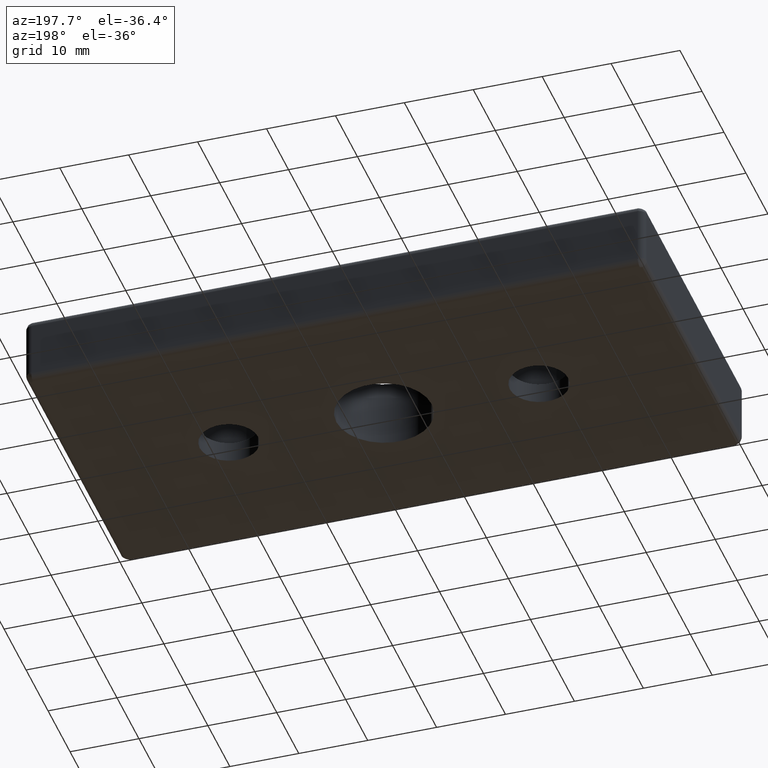
[diagram: clean part render]
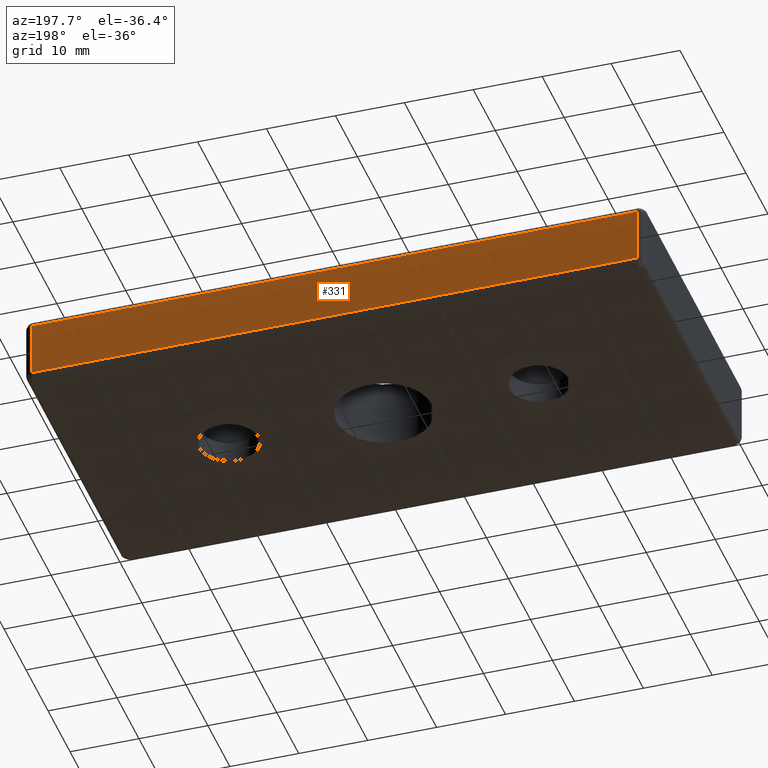
[diagram: same view with one face highlighted and labeled with its STEP entity id]
A machine part, auxiliary view. The second image highlights one B-rep face of the part: STEP entity #331.
In plain terms, the highlighted planar face has unit normal (0, 1, 0).
Its self-contained STEP definition (entity closure, byte-faithful):
#292=CARTESIAN_POINT('',(-93.107106781186502,22.499999999999993,0.307106781186548));
#293=DIRECTION('',(0.0,1.0,0.0));
#294=DIRECTION('',(0.0,0.0,1.0));
#295=AXIS2_PLACEMENT_3D('',#292,#293,#294);
#296=PLANE('',#295);
#297=CARTESIAN_POINT('',(-0.707106781186493,22.499999999999993,0.707106781186550));
#298=VERTEX_POINT('',#297);
#299=CARTESIAN_POINT('',(-88.707106781186482,22.499999999999993,0.707106781186550));
#300=VERTEX_POINT('',#299);
#301=CARTESIAN_POINT('',(-0.707106781186493,22.499999999999993,0.707106781186548));
#302=DIRECTION('',(-1.0,0.0,0.0));
#303=VECTOR('',#302,88.0);
#304=LINE('',#301,#303);
#305=EDGE_CURVE('',#298,#300,#304,.T.);
#306=ORIENTED_EDGE('',*,*,#305,.T.);
#307=CARTESIAN_POINT('',(-88.707106781186482,22.499999999999993,8.707106781186552));
#308=VERTEX_POINT('',#307);
#309=CARTESIAN_POINT('',(-88.707106781186496,22.499999999999993,0.707106781186548));
#310=DIRECTION('',(0.0,0.0,1.0));
#311=VECTOR('',#310,8.000000000000004);
#312=LINE('',#309,#311);
#313=EDGE_CURVE('',#300,#308,#312,.T.);
#314=ORIENTED_EDGE('',*,*,#313,.T.);
#315=CARTESIAN_POINT('',(-0.707106781186493,22.499999999999993,8.707106781186552));
#316=VERTEX_POINT('',#315);
#317=CARTESIAN_POINT('',(-88.707106781186496,22.499999999999993,8.707106781186552));
#318=DIRECTION('',(1.0,0.0,0.0));
#319=VECTOR('',#318,88.0);
#320=LINE('',#317,#319);
#321=EDGE_CURVE('',#308,#316,#320,.T.);
#322=ORIENTED_EDGE('',*,*,#321,.T.);
#323=CARTESIAN_POINT('',(-0.707106781186493,22.499999999999993,8.707106781186552));
#324=DIRECTION('',(0.0,0.0,-1.0));
#325=VECTOR('',#324,8.000000000000004);
#326=LINE('',#323,#325);
#327=EDGE_CURVE('',#316,#298,#326,.T.);
#328=ORIENTED_EDGE('',*,*,#327,.T.);
#329=EDGE_LOOP('',(#306,#314,#322,#328));
#330=FACE_OUTER_BOUND('',#329,.T.);
#331=ADVANCED_FACE('',(#330),#296,.T.);